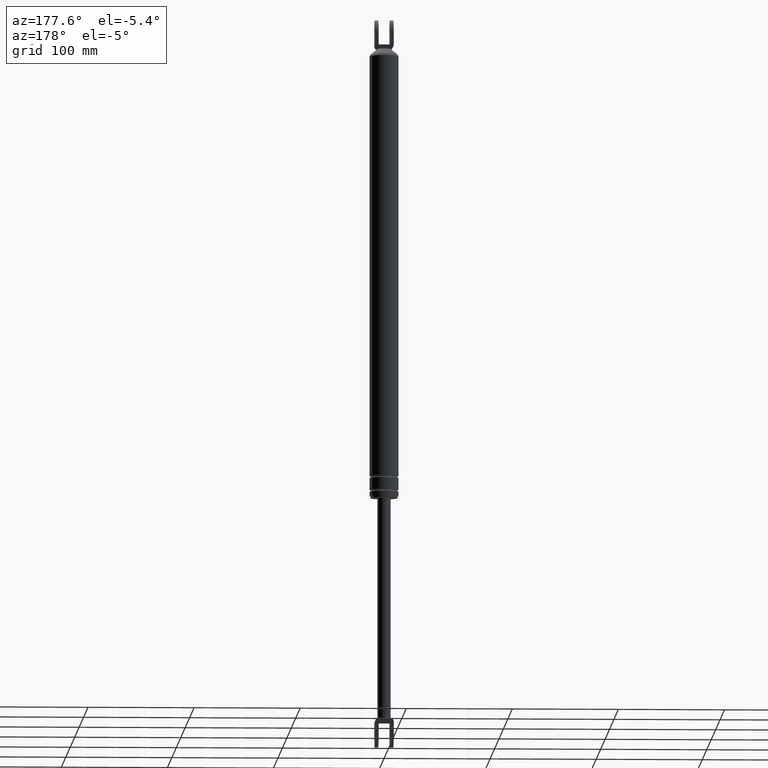
[diagram: clean part render]
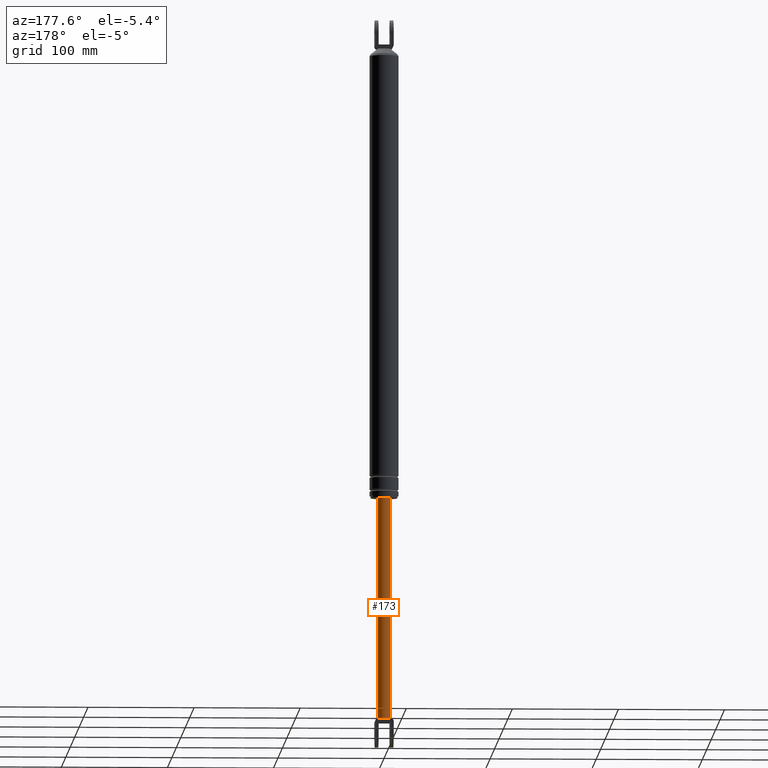
[diagram: same view with one face highlighted and labeled with its STEP entity id]
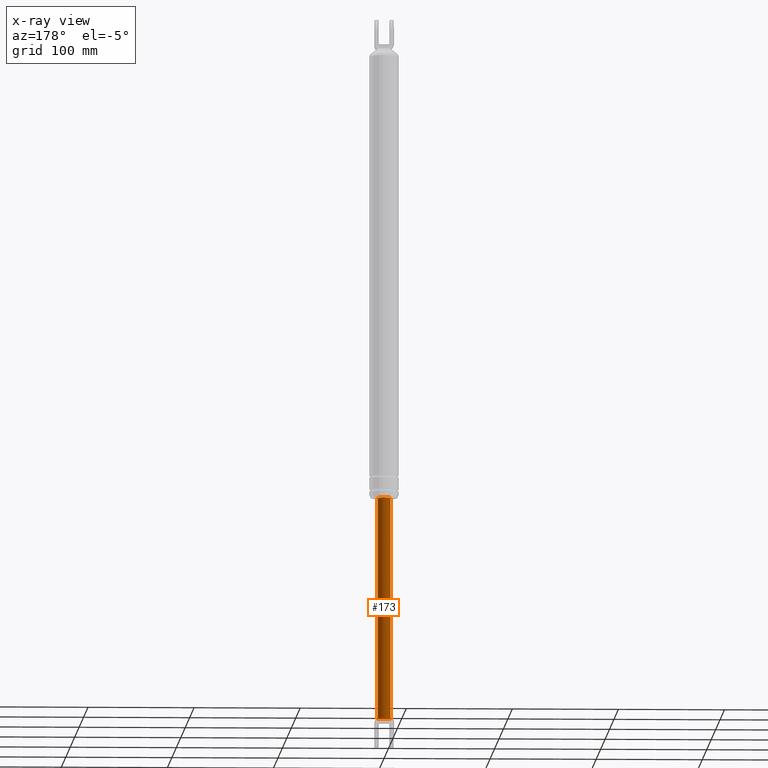
[diagram: x-ray of the same camera — body ghosted, the highlighted face saturated]
A machine part, auxiliary view. The second image highlights one B-rep face of the part: STEP entity #173.
The next image is the same camera in x-ray: the body ghosted, the highlighted face saturated — about 0% of this face is hidden behind the body in this view.
In plain terms, the highlighted cylindrical surface (edge-blend (fillet) strip) has radius 6.25 mm, axis along (0, 0, 1).
Its self-contained STEP definition (entity closure, byte-faithful):
#173=ADVANCED_FACE('',(#795),#794,.T.);
#794=CYLINDRICAL_SURFACE('',#1373,6.25000000000E+000);
#795=FACE_OUTER_BOUND('',#1374,.T.);
#1370=CARTESIAN_POINT('',(0.00000000000E+000,0.00000000000E+000,7.87799987000E+002));
#1371=DIRECTION('',(-0.00000000000E+000,-0.00000000000E+000,1.00000000000E+000));
#1372=DIRECTION('',(1.00000000000E+000,-0.00000000000E+000,-0.00000000000E+000));
#1373=AXIS2_PLACEMENT_3D('',#1370,#1371,#1372);
#1374=EDGE_LOOP('',(#1676,#1677,#1678,#1679,#1680,#1681));
#1676=ORIENTED_EDGE('',*,*,#1825,.F.);
#1677=ORIENTED_EDGE('',*,*,#1840,.F.);
#1678=ORIENTED_EDGE('',*,*,#1831,.F.);
#1679=ORIENTED_EDGE('',*,*,#1827,.F.);
#1680=ORIENTED_EDGE('',*,*,#1782,.F.);
#1681=ORIENTED_EDGE('',*,*,#1841,.T.);
#1782=EDGE_CURVE('',#2458,#2465,#2466,.T.);
#1825=EDGE_CURVE('',#2749,#2748,#2756,.T.);
#1827=EDGE_CURVE('',#2465,#2768,#2769,.T.);
#1831=EDGE_CURVE('',#2768,#2793,#2794,.T.);
#1840=EDGE_CURVE('',#2793,#2749,#2850,.T.);
#1841=EDGE_CURVE('',#2458,#2748,#2856,.T.);
#2458=VERTEX_POINT('',#3244);
#2465=VERTEX_POINT('',#3249);
#2466=CIRCLE('',#3253,6.25000000000E+000);
#2748=VERTEX_POINT('',#3437);
#2749=VERTEX_POINT('',#3438);
#2756=CIRCLE('',#3446,6.25000000000E+000);
#2768=VERTEX_POINT('',#3450);
#2769=CIRCLE('',#3454,6.25000000000E+000);
#2793=VERTEX_POINT('',#3466);
#2794=CIRCLE('',#3470,6.25000000000E+000);
#2850=(BOUNDED_CURVE() B_SPLINE_CURVE(1,(#3496,#3497),.UNSPECIFIED.,.F.,.F.) B_SPLINE_CURVE_WITH_KNOTS((2,2),(4.36681190507E-002,9.56331880817E-001),.UNSPECIFIED.) CURVE() GEOMETRIC_REPRESENTATION_ITEM() RATIONAL_B_SPLINE_CURVE((1.00000000000E+000,1.00000000000E+000)) REPRESENTATION_ITEM('') );
#2856=(BOUNDED_CURVE() B_SPLINE_CURVE(1,(#3498,#3499),.UNSPECIFIED.,.F.,.F.) B_SPLINE_CURVE_WITH_KNOTS((2,2),(4.36681192197E-002,9.56331880780E-001),.UNSPECIFIED.) CURVE() GEOMETRIC_REPRESENTATION_ITEM() RATIONAL_B_SPLINE_CURVE((7.50000000000E-001,7.50000000000E-001)) REPRESENTATION_ITEM('') );
#3244=CARTESIAN_POINT('',(-6.25000000000E+000,-1.32865964537E-008,-2.09000016000E+002));
#3249=CARTESIAN_POINT('',(-5.69999700000E+000,2.56369541872E+000,-2.09000016000E+002));
#3250=CARTESIAN_POINT('',(0.00000000000E+000,0.00000000000E+000,-2.09000016000E+002));
#3251=DIRECTION('',(0.00000000000E+000,-0.00000000000E+000,-1.00000000000E+000));
#3252=DIRECTION('',(-9.11999520000E-001,4.10191266996E-001,-0.00000000000E+000));
#3253=AXIS2_PLACEMENT_3D('',#3250,#3251,#3252);
#3437=CARTESIAN_POINT('',(-6.25000000000E+000,0.00000000000E+000,0.00000000000E+000));
#3438=CARTESIAN_POINT('',(6.25000000000E+000,8.88178419700E-016,0.00000000000E+000));
#3443=CARTESIAN_POINT('',(0.00000000000E+000,0.00000000000E+000,0.00000000000E+000));
#3444=DIRECTION('',(0.00000000000E+000,0.00000000000E+000,1.00000000000E+000));
#3445=DIRECTION('',(-1.00000000000E+000,-1.22460635382E-016,0.00000000000E+000));
#3446=AXIS2_PLACEMENT_3D('',#3443,#3444,#3445);
#3450=CARTESIAN_POINT('',(5.69999700000E+000,2.56369541872E+000,-2.09000016000E+002));
#3451=CARTESIAN_POINT('',(0.00000000000E+000,0.00000000000E+000,-2.09000016000E+002));
#3452=DIRECTION('',(0.00000000000E+000,0.00000000000E+000,-1.00000000000E+000));
#3453=DIRECTION('',(-1.00000000000E+000,-0.00000000000E+000,-0.00000000000E+000));
#3454=AXIS2_PLACEMENT_3D('',#3451,#3452,#3453);
#3466=CARTESIAN_POINT('',(6.25000000000E+000,8.12925012908E-016,-2.09000016000E+002));
#3467=CARTESIAN_POINT('',(0.00000000000E+000,0.00000000000E+000,-2.09000016000E+002));
#3468=DIRECTION('',(0.00000000000E+000,0.00000000000E+000,-1.00000000000E+000));
#3469=DIRECTION('',(-1.00000000000E+000,-0.00000000000E+000,-0.00000000000E+000));
#3470=AXIS2_PLACEMENT_3D('',#3467,#3468,#3469);
#3496=CARTESIAN_POINT('',(6.25000000000E+000,0.00000000000E+000,-2.09000016039E+002));
#3497=CARTESIAN_POINT('',(6.25000000000E+000,0.00000000000E+000,8.39333225144E-009));
#3498=CARTESIAN_POINT('',(-6.25000000000E+000,0.00000000000E+000,-2.09000016000E+002));
#3499=CARTESIAN_POINT('',(-6.25000000000E+000,0.00000000000E+000,8.28966525053E-015));